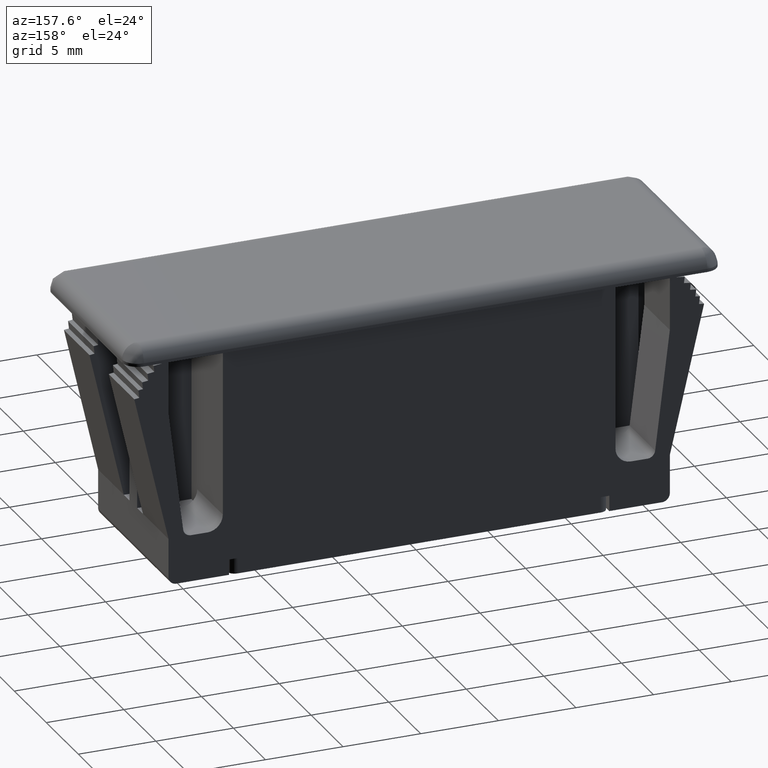
[diagram: clean part render]
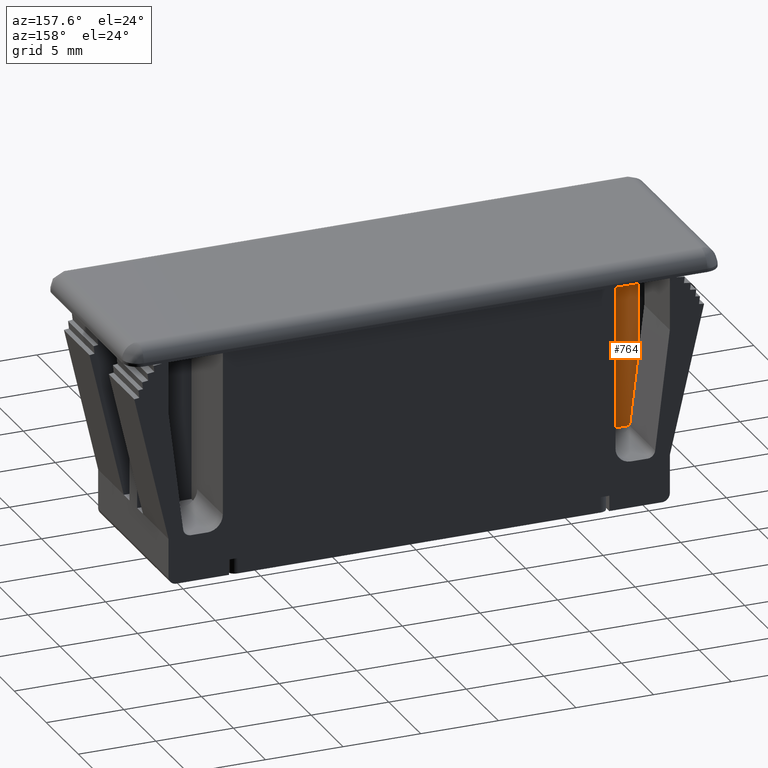
[diagram: same view with one face highlighted and labeled with its STEP entity id]
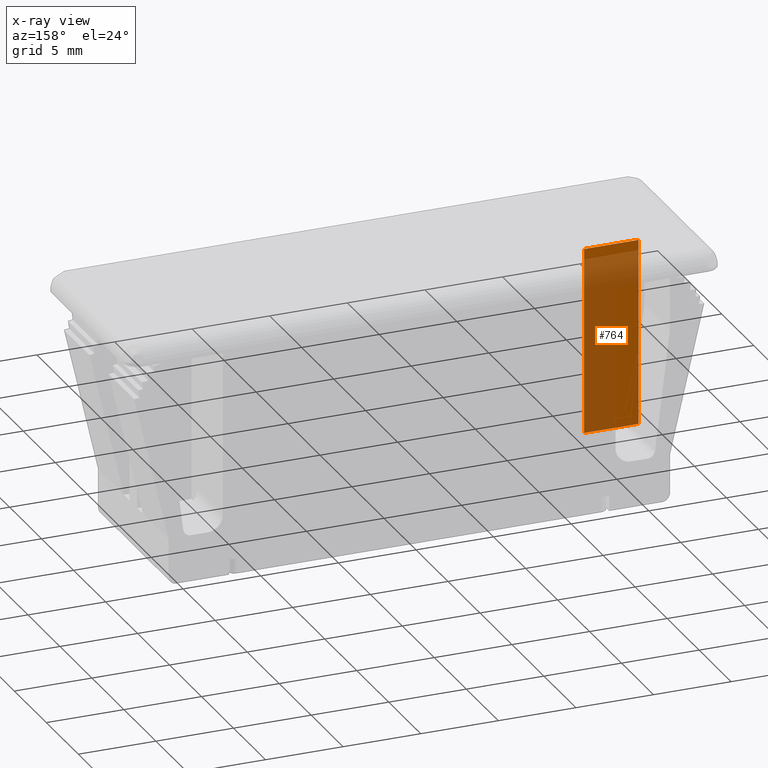
[diagram: x-ray of the same camera — body ghosted, the highlighted face saturated]
A machine part, auxiliary view. The second image highlights one B-rep face of the part: STEP entity #764.
The next image is the same camera in x-ray: the body ghosted, the highlighted face saturated — about 62% of this face is hidden behind the body in this view.
In plain terms, the highlighted face is a freeform B-spline surface patch.
Its self-contained STEP definition (entity closure, byte-faithful):
#729=CARTESIAN_POINT('',(-16.324824993217071,0.600000000000051,-0.600600023117498));
#730=CARTESIAN_POINT('',(-16.324824993217071,0.600000000000051,-13.799400298526400));
#731=CARTESIAN_POINT('',(-12.475174912900670,0.600000000000051,-0.600600023117498));
#732=CARTESIAN_POINT('',(-12.475174912900670,0.600000000000051,-13.799400298526400));
#733=B_SPLINE_SURFACE_WITH_KNOTS('',1,1,((#729,#731),(#730,#732)),.UNSPECIFIED.,.F.,.F.,.U.,(2,2),(2,2),(0.0,13.198800275408910),(0.0,3.849650080316396),.UNSPECIFIED.);
#734=CARTESIAN_POINT('',(-16.150000000000450,0.600000000000051,-1.199999999861916));
#735=VERTEX_POINT('',#734);
#736=CARTESIAN_POINT('',(-16.149999999996300,0.600000000000045,-13.199999999916900));
#737=VERTEX_POINT('',#736);
#738=CARTESIAN_POINT('',(-16.150000000000450,0.600000000000051,-1.199999999861916));
#739=CARTESIAN_POINT('',(-16.149999999996300,0.600000000000045,-13.199999999916900));
#740=QUASI_UNIFORM_CURVE('',1,(#738,#739),.UNSPECIFIED.,.F.,.U.);
#741=EDGE_CURVE('',#735,#737,#740,.T.);
#742=ORIENTED_EDGE('',*,*,#741,.F.);
#743=CARTESIAN_POINT('',(-12.649999999994600,0.600000000000051,-1.199999999861916));
#744=VERTEX_POINT('',#743);
#745=CARTESIAN_POINT('',(-12.649999999994600,0.600000000000051,-1.199999999861916));
#746=CARTESIAN_POINT('',(-16.150000000000450,0.600000000000051,-1.199999999861916));
#747=QUASI_UNIFORM_CURVE('',1,(#745,#746),.UNSPECIFIED.,.F.,.U.);
#748=EDGE_CURVE('',#744,#735,#747,.T.);
#749=ORIENTED_EDGE('',*,*,#748,.F.);
#750=CARTESIAN_POINT('',(-12.649999999994600,0.600000000000051,-13.199999999916900));
#751=VERTEX_POINT('',#750);
#752=CARTESIAN_POINT('',(-12.649999999994600,0.600000000000051,-1.199999999861916));
#753=CARTESIAN_POINT('',(-12.649999999994600,0.600000000000051,-13.199999999916900));
#754=QUASI_UNIFORM_CURVE('',1,(#752,#753),.UNSPECIFIED.,.F.,.U.);
#755=EDGE_CURVE('',#744,#751,#754,.T.);
#756=ORIENTED_EDGE('',*,*,#755,.T.);
#757=CARTESIAN_POINT('',(-12.649999999994600,0.600000000000051,-13.199999999916900));
#758=CARTESIAN_POINT('',(-16.149999999996300,0.600000000000045,-13.199999999916900));
#759=QUASI_UNIFORM_CURVE('',1,(#757,#758),.UNSPECIFIED.,.F.,.U.);
#760=EDGE_CURVE('',#751,#737,#759,.T.);
#761=ORIENTED_EDGE('',*,*,#760,.T.);
#762=EDGE_LOOP('',(#742,#749,#756,#761));
#763=FACE_OUTER_BOUND('',#762,.T.);
#764=ADVANCED_FACE('',(#763),#733,.F.);